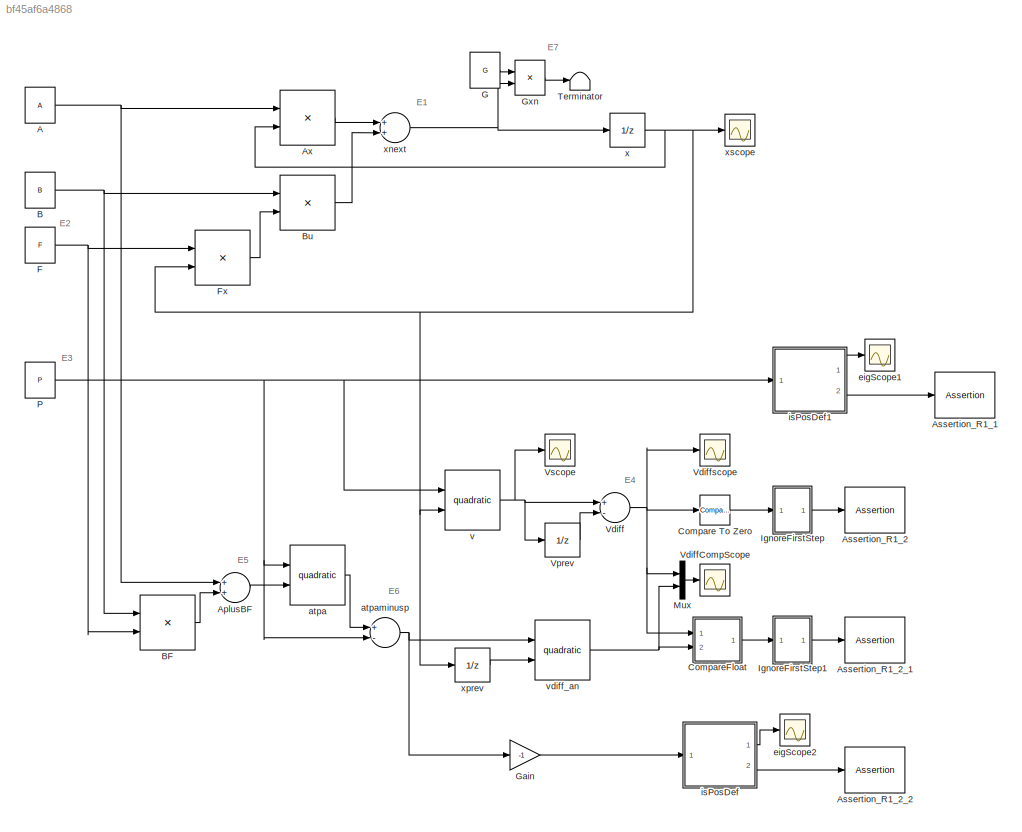
MODEL slx_bf45af6a4868
KIND model
BLOCK [Constant] A
  Value = A
BLOCK [Sum] AplusBF
  InputSameDT = off
  OutDataTypeStr = Inherit: Inherit via internal rule
  Ports = [2, 1]
  SaturateOnIntegerOverflow = off
BLOCK [Assertion] Assertion_R1_1
  Enabled = on
BLOCK [Assertion] Assertion_R1_2
  Enabled = on
BLOCK [Assertion] Assertion_R1_2_1
  Enabled = off
BLOCK [Assertion] Assertion_R1_2_2
  Enabled = on
BLOCK [Product] Ax
  InputSameDT = off
  Multiplication = Matrix(*)
  OutDataTypeStr = Inherit: Inherit via internal rule
  Ports = [2, 1]
  SaturateOnIntegerOverflow = off
BLOCK [Constant] B
  Value = B
BLOCK [Product] BF
  InputSameDT = off
  Multiplication = Matrix(*)
  OutDataTypeStr = Inherit: Inherit via internal rule
  Ports = [2, 1]
  SaturateOnIntegerOverflow = off
BLOCK [Product] Bu
  InputSameDT = off
  Multiplication = Matrix(*)
  OutDataTypeStr = Inherit: Inherit via internal rule
  Ports = [2, 1]
  SaturateOnIntegerOverflow = off
BLOCK [Reference] Compare To Zero  REF=simulink/Logic and Bit
Operations/Compare
To Zero
  OutDataTypeStr = boolean
  Ports = [1, 1]
  SourceBlock = simulink/Logic and Bit\nOperations/Compare\nTo Zero
  SourceType = Compare To Zero
  ZeroCross = on
  relop = <
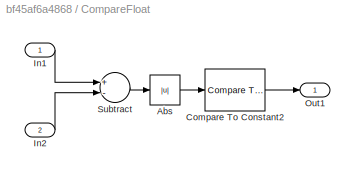
BLOCK [SubSystem] CompareFloat
  FunctionWithSeparateData = off
  MaskHideContents = off
  MinAlgLoopOccurrences = off
  Opaque = off
  Ports = [2, 1]
  PropExecContextOutsideSubsystem = off
  RTWSystemCode = Auto
  RequestExecContextInheritance = off
BLOCK [Abs] CompareFloat/Abs
  SaturateOnIntegerOverflow = off
BLOCK [Reference] CompareFloat/Compare To Constant2  REF=simulink/Logic and Bit
Operations/Compare
To Constant
  OutDataTypeStr = boolean
  Ports = [1, 1]
  SourceBlock = simulink/Logic and Bit\nOperations/Compare\nTo Constant
  SourceType = Compare To Constant
  ZeroCross = on
  const = 1e-9
  relop = <=
BLOCK [Inport] CompareFloat/In1
  IconDisplay = Port number
BLOCK [Inport] CompareFloat/In2
  IconDisplay = Port number
  Port = 2
BLOCK [Outport] CompareFloat/Out1
  IconDisplay = Port number
BLOCK [Sum] CompareFloat/Subtract
  InputSameDT = off
  Inputs = +-
  OutDataTypeStr = Inherit: Inherit via internal rule
  Ports = [2, 1]
  SaturateOnIntegerOverflow = off
BLOCK [Constant] F
  Value = F
  VectorParams1D = off
BLOCK [Product] Fx
  InputSameDT = off
  Multiplication = Matrix(*)
  OutDataTypeStr = Inherit: Inherit via internal rule
  Ports = [2, 1]
  SaturateOnIntegerOverflow = off
BLOCK [Constant] G
  Value = G
BLOCK [Gain] Gain
  Gain = -1
  OutDataTypeStr = Inherit: Inherit via internal rule
  ParamDataTypeStr = Inherit: Inherit via internal rule
  SaturateOnIntegerOverflow = off
BLOCK [Product] Gxn
  InputSameDT = off
  Multiplication = Matrix(*)
  OutDataTypeStr = Inherit: Inherit via internal rule
  Ports = [2, 1]
  SaturateOnIntegerOverflow = off
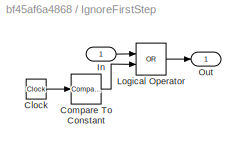
BLOCK [SubSystem] IgnoreFirstStep
  FunctionWithSeparateData = off
  MaskHideContents = off
  MaskIconFrame = on
  MaskIconOpaque = on
  MaskIconRotate = none
  MaskIconUnits = autoscale
  MaskPortRotate = default
  MaskType = IgnoreFirstStep
  MinAlgLoopOccurrences = off
  Opaque = off
  Ports = [1, 1]
  PropExecContextOutsideSubsystem = off
  RTWSystemCode = Auto
  RequestExecContextInheritance = off
BLOCK [Clock] IgnoreFirstStep/Clock
BLOCK [Reference] IgnoreFirstStep/Compare To Constant  REF=simulink/Logic and Bit
Operations/Compare
To Constant
  OutDataTypeStr = boolean
  Ports = [1, 1]
  SourceBlock = simulink/Logic and Bit\nOperations/Compare\nTo Constant
  SourceType = Compare To Constant
  ZeroCross = on
  const = 1
  relop = <=
BLOCK [Inport] IgnoreFirstStep/In
  IconDisplay = Port number
BLOCK [Logic] IgnoreFirstStep/Logical Operator
  AllPortsSameDT = off
  IconShape = distinctive
  Operator = OR
  OutDataTypeStr = boolean
  Ports = [2, 1]
BLOCK [Outport] IgnoreFirstStep/Out
  IconDisplay = Port number
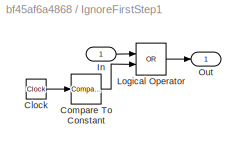
BLOCK [SubSystem] IgnoreFirstStep1
  FunctionWithSeparateData = off
  MaskHideContents = off
  MaskIconFrame = on
  MaskIconOpaque = on
  MaskIconRotate = none
  MaskIconUnits = autoscale
  MaskPortRotate = default
  MaskType = IgnoreFirstStep
  MinAlgLoopOccurrences = off
  Opaque = off
  Ports = [1, 1]
  PropExecContextOutsideSubsystem = off
  RTWSystemCode = Auto
  RequestExecContextInheritance = off
BLOCK [Clock] IgnoreFirstStep1/Clock
BLOCK [Reference] IgnoreFirstStep1/Compare To Constant  REF=simulink/Logic and Bit
Operations/Compare
To Constant
  OutDataTypeStr = boolean
  Ports = [1, 1]
  SourceBlock = simulink/Logic and Bit\nOperations/Compare\nTo Constant
  SourceType = Compare To Constant
  ZeroCross = on
  const = 1
  relop = <=
BLOCK [Inport] IgnoreFirstStep1/In
  IconDisplay = Port number
BLOCK [Logic] IgnoreFirstStep1/Logical Operator
  AllPortsSameDT = off
  IconShape = distinctive
  Operator = OR
  OutDataTypeStr = boolean
  Ports = [2, 1]
BLOCK [Outport] IgnoreFirstStep1/Out
  IconDisplay = Port number
BLOCK [Mux] Mux
  DisplayOption = bar
  Inputs = 2
  Ports = [2, 1]
BLOCK [Constant] P
  Value = P
BLOCK [Terminator] Terminator
BLOCK [Sum] Vdiff
  InputSameDT = off
  Inputs = +-
  MaskIconFrame = on
  MaskIconOpaque = on
  MaskIconRotate = none
  MaskIconUnits = autoscale
  MaskPortRotate = default
  MaskType = Subtract
  OutDataTypeStr = Inherit: Inherit via internal rule
  Ports = [2, 1]
  SaturateOnIntegerOverflow = off
BLOCK [Scope] VdiffCompScope
  DataFormat = StructureWithTime
  Floating = off
  NumInputPorts = 1
  Ports = [1]
  SampleTime = 0
  SaveName = ScopeData3
  ShowLegends = off
  ZoomMode = yonly
BLOCK [Scope] Vdiffscope
  DataFormat = StructureWithTime
  Floating = off
  NumInputPorts = 1
  Ports = [1]
  SampleTime = 0
  SaveName = ScopeData1
  ShowLegends = off
BLOCK [UnitDelay] Vprev
  InputProcessing = Elements as channels (sample based)
BLOCK [Scope] Vscope
  DataFormat = StructureWithTime
  Floating = off
  NumInputPorts = 1
  Ports = [1]
  SampleTime = 0
  SaveName = ScopeData2
  ShowLegends = off
  ZoomMode = yonly
BLOCK [Reference] atpa  REF=utils/quadratic  (lib defined in mdl_b4a2d5202953, slx_566556b4cd74)
  FunctionWithSeparateData = off
  GeneratePreprocessorConditionals = off
  Ports = [2, 1]
  RTWMemSecDataConstants = Inherit from model
  RTWMemSecDataInternal = Inherit from model
  RTWMemSecDataParameters = Inherit from model
  RTWMemSecFuncExecute = Inherit from model
  RTWMemSecFuncInitTerm = Inherit from model
  ShowPortLabels = FromPortIcon
  SourceBlock = utils/quadratic
  SourceType = Quadratic
  SystemSampleTime = -1
BLOCK [Sum] atpaminusp
  InputSameDT = off
  Inputs = +-
  MaskIconFrame = on
  MaskIconOpaque = on
  MaskIconRotate = none
  MaskIconUnits = autoscale
  MaskPortRotate = default
  MaskType = Subtract
  OutDataTypeStr = Inherit: Inherit via internal rule
  Ports = [2, 1]
  SaturateOnIntegerOverflow = off
BLOCK [Scope] eigScope1
  DataFormat = StructureWithTime
  Floating = off
  NumInputPorts = 1
  Ports = [1]
  SampleTime = 0
  SaveName = ScopeData5
  ShowLegends = off
BLOCK [Scope] eigScope2
  DataFormat = StructureWithTime
  Floating = off
  NumInputPorts = 1
  Ports = [1]
  SampleTime = 0
  SaveName = ScopeData4
  ShowLegends = off
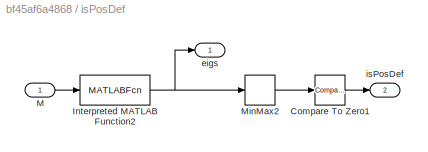
BLOCK [SubSystem] isPosDef
  FunctionWithSeparateData = off
  MaskHideContents = off
  MinAlgLoopOccurrences = off
  Opaque = off
  Ports = [1, 2]
  PropExecContextOutsideSubsystem = off
  RTWSystemCode = Auto
  RequestExecContextInheritance = off
BLOCK [Reference] isPosDef/Compare To Zero1  REF=simulink/Logic and Bit
Operations/Compare
To Zero
  OutDataTypeStr = boolean
  Ports = [1, 1]
  SourceBlock = simulink/Logic and Bit\nOperations/Compare\nTo Zero
  SourceType = Compare To Zero
  ZeroCross = on
  relop = >
BLOCK [MATLABFcn] isPosDef/Interpreted MATLAB Function2
  MATLABFcn = eig
  Ports = [1, 1]
BLOCK [Inport] isPosDef/M
  IconDisplay = Port number
BLOCK [MinMax] isPosDef/MinMax2
  InputSameDT = off
  Ports = [1, 1]
  SaturateOnIntegerOverflow = off
BLOCK [Outport] isPosDef/eigs
  IconDisplay = Port number
BLOCK [Outport] isPosDef/isPosDef
  IconDisplay = Port number
  Port = 2
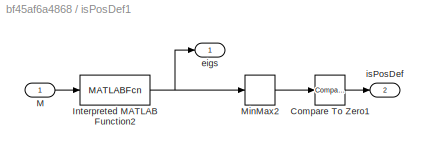
BLOCK [SubSystem] isPosDef1
  FunctionWithSeparateData = off
  MaskHideContents = off
  MinAlgLoopOccurrences = off
  Opaque = off
  Ports = [1, 2]
  PropExecContextOutsideSubsystem = off
  RTWSystemCode = Auto
  RequestExecContextInheritance = off
BLOCK [Reference] isPosDef1/Compare To Zero1  REF=simulink/Logic and Bit
Operations/Compare
To Zero
  OutDataTypeStr = boolean
  Ports = [1, 1]
  SourceBlock = simulink/Logic and Bit\nOperations/Compare\nTo Zero
  SourceType = Compare To Zero
  ZeroCross = on
  relop = >
BLOCK [MATLABFcn] isPosDef1/Interpreted MATLAB Function2
  MATLABFcn = eig
  Ports = [1, 1]
BLOCK [Inport] isPosDef1/M
  IconDisplay = Port number
BLOCK [MinMax] isPosDef1/MinMax2
  InputSameDT = off
  Ports = [1, 1]
  SaturateOnIntegerOverflow = off
BLOCK [Outport] isPosDef1/eigs
  IconDisplay = Port number
BLOCK [Outport] isPosDef1/isPosDef
  IconDisplay = Port number
  Port = 2
BLOCK [Reference] v  REF=utils/quadratic  (lib defined in mdl_b4a2d5202953, slx_566556b4cd74)
  FunctionWithSeparateData = off
  GeneratePreprocessorConditionals = off
  Ports = [2, 1]
  RTWMemSecDataConstants = Inherit from model
  RTWMemSecDataInternal = Inherit from model
  RTWMemSecDataParameters = Inherit from model
  RTWMemSecFuncExecute = Inherit from model
  RTWMemSecFuncInitTerm = Inherit from model
  ShowPortLabels = FromPortIcon
  SourceBlock = utils/quadratic
  SourceType = Quadratic
  SystemSampleTime = -1
BLOCK [Reference] vdiff_an  REF=utils/quadratic  (lib defined in mdl_b4a2d5202953, slx_566556b4cd74)
  FunctionWithSeparateData = off
  GeneratePreprocessorConditionals = off
  Ports = [2, 1]
  RTWMemSecDataConstants = Inherit from model
  RTWMemSecDataInternal = Inherit from model
  RTWMemSecDataParameters = Inherit from model
  RTWMemSecFuncExecute = Inherit from model
  RTWMemSecFuncInitTerm = Inherit from model
  ShowPortLabels = FromPortIcon
  SourceBlock = utils/quadratic
  SourceType = Quadratic
  SystemSampleTime = -1
BLOCK [UnitDelay] x
  InputProcessing = Elements as channels (sample based)
  X0 = x0
BLOCK [Sum] xnext
  InputSameDT = off
  OutDataTypeStr = Inherit: Inherit via internal rule
  Ports = [2, 1]
  SaturateOnIntegerOverflow = off
BLOCK [UnitDelay] xprev
  InputProcessing = Elements as channels (sample based)
BLOCK [Scope] xscope
  DataFormat = StructureWithTime
  Floating = off
  NumInputPorts = 1
  Ports = [1]
  SampleTime = 0
  ShowLegends = off
ANNOTATION (root): E1
ANNOTATION (root): E2
ANNOTATION (root): E3
ANNOTATION (root): E4
ANNOTATION (root): E5
ANNOTATION (root): E6
ANNOTATION (root): E7
NET A:1 -> AplusBF:1, Ax:1
LINE AplusBF:1 -> atpa:2
LINE Ax:1 -> xnext:1
NET B:1 -> BF:1, Bu:1
LINE BF:1 -> AplusBF:2
LINE Bu:1 -> xnext:2
LINE Compare To Zero:1 -> IgnoreFirstStep:1
LINE CompareFloat/Abs:1 -> CompareFloat/Compare To Constant2:1
LINE CompareFloat/Compare To Constant2:1 -> CompareFloat/Out1:1
LINE CompareFloat/In1:1 -> CompareFloat/Subtract:1
LINE CompareFloat/In2:1 -> CompareFloat/Subtract:2
LINE CompareFloat/Subtract:1 -> CompareFloat/Abs:1
LINE CompareFloat:1 -> IgnoreFirstStep1:1
NET F:1 -> BF:2, Fx:1
LINE Fx:1 -> Bu:2
LINE G:1 -> Gxn:1
LINE Gain:1 -> isPosDef:1
LINE Gxn:1 -> Terminator:1
LINE IgnoreFirstStep/Clock:1 -> IgnoreFirstStep/Compare To Constant:1
LINE IgnoreFirstStep/Compare To Constant:1 -> IgnoreFirstStep/Logical Operator:2
LINE IgnoreFirstStep/In:1 -> IgnoreFirstStep/Logical Operator:1
LINE IgnoreFirstStep/Logical Operator:1 -> IgnoreFirstStep/Out:1
LINE IgnoreFirstStep1/Clock:1 -> IgnoreFirstStep1/Compare To Constant:1
LINE IgnoreFirstStep1/Compare To Constant:1 -> IgnoreFirstStep1/Logical Operator:2
LINE IgnoreFirstStep1/In:1 -> IgnoreFirstStep1/Logical Operator:1
LINE IgnoreFirstStep1/Logical Operator:1 -> IgnoreFirstStep1/Out:1
LINE IgnoreFirstStep1:1 -> Assertion_R1_2_1:1
LINE IgnoreFirstStep:1 -> Assertion_R1_2:1
LINE Mux:1 -> VdiffCompScope:1
NET P:1 -> atpa:1, atpaminusp:2, isPosDef1:1, v:1
NET Vdiff:1 -> Compare To Zero:1, CompareFloat:1, Mux:1, Vdiffscope:1
LINE Vprev:1 -> Vdiff:2
LINE atpa:1 -> atpaminusp:1
NET atpaminusp:1 -> Gain:1, vdiff_an:1
LINE isPosDef/Compare To Zero1:1 -> isPosDef/isPosDef:1
NET isPosDef/Interpreted MATLAB Function2:1 -> isPosDef/MinMax2:1, isPosDef/eigs:1
LINE isPosDef/M:1 -> isPosDef/Interpreted MATLAB Function2:1
LINE isPosDef/MinMax2:1 -> isPosDef/Compare To Zero1:1
LINE isPosDef1/Compare To Zero1:1 -> isPosDef1/isPosDef:1
NET isPosDef1/Interpreted MATLAB Function2:1 -> isPosDef1/MinMax2:1, isPosDef1/eigs:1
LINE isPosDef1/M:1 -> isPosDef1/Interpreted MATLAB Function2:1
LINE isPosDef1/MinMax2:1 -> isPosDef1/Compare To Zero1:1
LINE isPosDef1:1 -> eigScope1:1
LINE isPosDef1:2 -> Assertion_R1_1:1
LINE isPosDef:1 -> eigScope2:1
LINE isPosDef:2 -> Assertion_R1_2_2:1
NET v:1 -> Vdiff:1, Vprev:1, Vscope:1
NET vdiff_an:1 -> CompareFloat:2, Mux:2
NET x:1 -> Ax:2, Fx:2, v:2, xprev:1, xscope:1
NET xnext:1 -> Gxn:2, x:1
LINE xprev:1 -> vdiff_an:2
note: NET lines group one-source signal fan-out (src -> all destinations, sorted); 1:1 wires keep LINE
